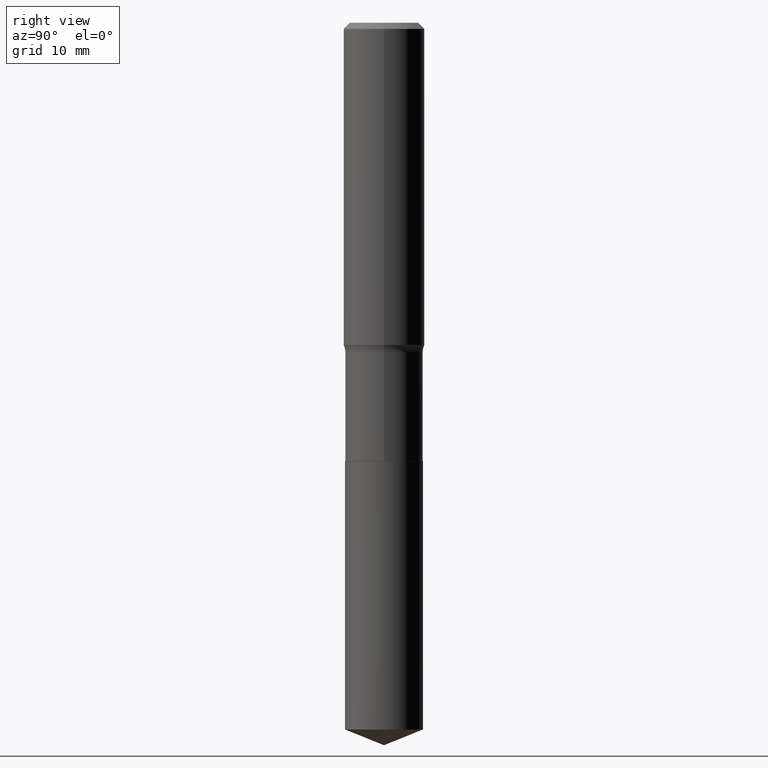
[diagram: clean part render]
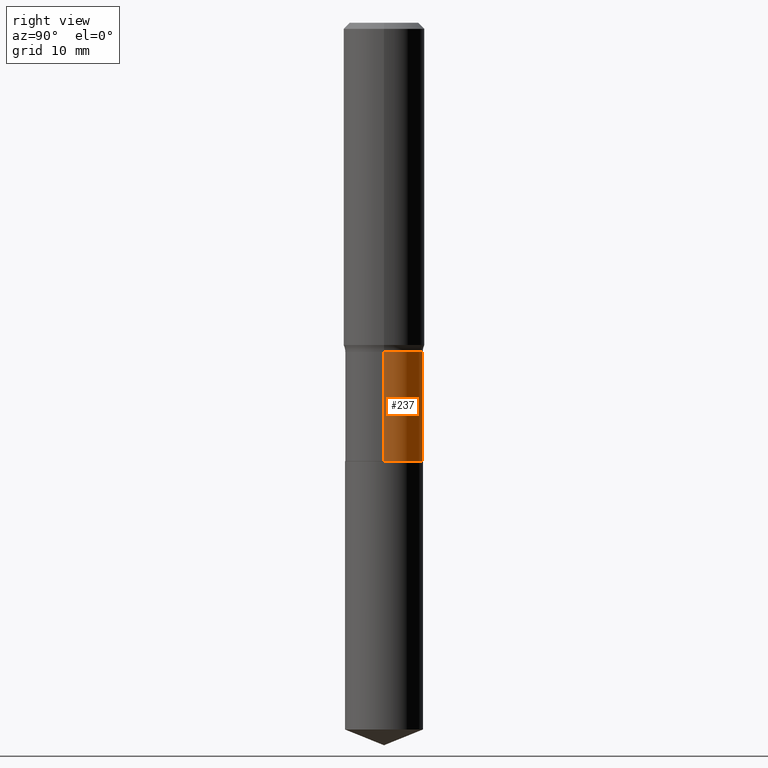
[diagram: same view with one face highlighted and labeled with its STEP entity id]
A machine part, right view. The second image highlights one B-rep face of the part: STEP entity #237.
In plain terms, the highlighted cylindrical surface (partial cylindrical patch) has radius 4.8006 mm, axis along (-0, 0, 1).
Its self-contained STEP definition (entity closure, byte-faithful):
#16 = AXIS2_PLACEMENT_3D ( 'NONE', #107, #27, #143 ) ;
#17 = CARTESIAN_POINT ( 'NONE',  ( -0.1889999999999999458, 1.342925770586588966E-15, -9.296787320581769859E-30 ) ) ;
#19 = EDGE_CURVE ( 'NONE', #316, #167, #53, .T. ) ;
#27 = DIRECTION ( 'NONE',  ( -2.445468806185136597E-29, 3.491481338843145583E-15, 1.000000000000000000 ) ) ;
#28 = LINE ( 'NONE', #147, #144 ) ;
#45 = DIRECTION ( 'NONE',  ( 1.000000000000000000, -6.982962677686266711E-15, 0.000000000000000000 ) ) ;
#52 = AXIS2_PLACEMENT_3D ( 'NONE', #419, #387, #45 ) ;
#53 = LINE ( 'NONE', #17, #111 ) ;
#65 = CARTESIAN_POINT ( 'NONE',  ( 0.1889999999999999181, -6.894977347947437919E-15, -1.596799999999999775 ) ) ;
#79 = AXIS2_PLACEMENT_3D ( 'NONE', #257, #97, #254 ) ;
#97 = DIRECTION ( 'NONE',  ( -2.445468806185136597E-29, 3.491481338843145583E-15, 1.000000000000000000 ) ) ;
#101 = ORIENTED_EDGE ( 'NONE', *, *, #224, .F. ) ;
#107 = CARTESIAN_POINT ( 'NONE',  ( 0.000000000000000000, 0.000000000000000000, 0.000000000000000000 ) ) ;
#111 = VECTOR ( 'NONE', #165, 39.37007874015748143 ) ;
#137 = FACE_OUTER_BOUND ( 'NONE', #332, .T. ) ;
#143 = DIRECTION ( 'NONE',  ( 1.000000000000000000, -6.982962677686266711E-15, 4.876176775795935793E-29 ) ) ;
#144 = VECTOR ( 'NONE', #329, 39.37007874015748143 ) ;
#147 = CARTESIAN_POINT ( 'NONE',  ( 0.1889999999999999458, -1.319779946082704030E-15, 9.215974106254316519E-30 ) ) ;
#165 = DIRECTION ( 'NONE',  ( -2.445468806185136877E-29, 3.491481338843145188E-15, 1.000000000000000000 ) ) ;
#167 = VERTEX_POINT ( 'NONE', #173 ) ;
#173 = CARTESIAN_POINT ( 'NONE',  ( -0.1889999999999999181, -5.155070149134388786E-15, -1.596799999999999775 ) ) ;
#176 = CARTESIAN_POINT ( 'NONE',  ( 0.1889999999999999736, -8.740574383659924856E-15, -2.125399999999999956 ) ) ;
#191 = CARTESIAN_POINT ( 'NONE',  ( -0.1889999999999999736, -5.155070149134388786E-15, -2.125399999999999956 ) ) ;
#198 = VERTEX_POINT ( 'NONE', #176 ) ;
#215 = ORIENTED_EDGE ( 'NONE', *, *, #225, .F. ) ;
#224 = EDGE_CURVE ( 'NONE', #233, #167, #297, .T. ) ;
#225 = EDGE_CURVE ( 'NONE', #198, #233, #28, .T. ) ;
#233 = VERTEX_POINT ( 'NONE', #65 ) ;
#237 = ADVANCED_FACE ( 'NONE', ( #137 ), #298, .T. ) ;
#254 = DIRECTION ( 'NONE',  ( 1.000000000000000000, -6.982962677686269077E-15, 0.000000000000000000 ) ) ;
#257 = CARTESIAN_POINT ( 'NONE',  ( 3.904924589716425410E-29, -5.575197401864733889E-15, -1.596799999999999775 ) ) ;
#291 = ORIENTED_EDGE ( 'NONE', *, *, #456, .T. ) ;
#297 = CIRCLE ( 'NONE', #79, 0.1889999999999999181 ) ;
#298 = CYLINDRICAL_SURFACE ( 'NONE', #16, 0.1889999999999999458 ) ;
#316 = VERTEX_POINT ( 'NONE', #191 ) ;
#329 = DIRECTION ( 'NONE',  ( -2.445468806185136877E-29, 3.491481338843145188E-15, 1.000000000000000000 ) ) ;
#332 = EDGE_LOOP ( 'NONE', ( #291, #417, #101, #215 ) ) ;
#387 = DIRECTION ( 'NONE',  ( -2.445468806185136597E-29, 3.491481338843145583E-15, 1.000000000000000000 ) ) ;
#417 = ORIENTED_EDGE ( 'NONE', *, *, #19, .T. ) ;
#419 = CARTESIAN_POINT ( 'NONE',  ( 5.197599400665889285E-29, -7.420794437577220826E-15, -2.125399999999999956 ) ) ;
#431 = CIRCLE ( 'NONE', #52, 0.1889999999999999736 ) ;
#456 = EDGE_CURVE ( 'NONE', #198, #316, #431, .T. ) ;